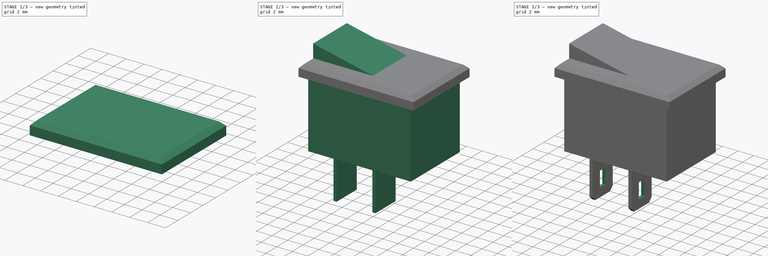
[diagram: build sequence overview — one tinted view per stage of 3, left to right]
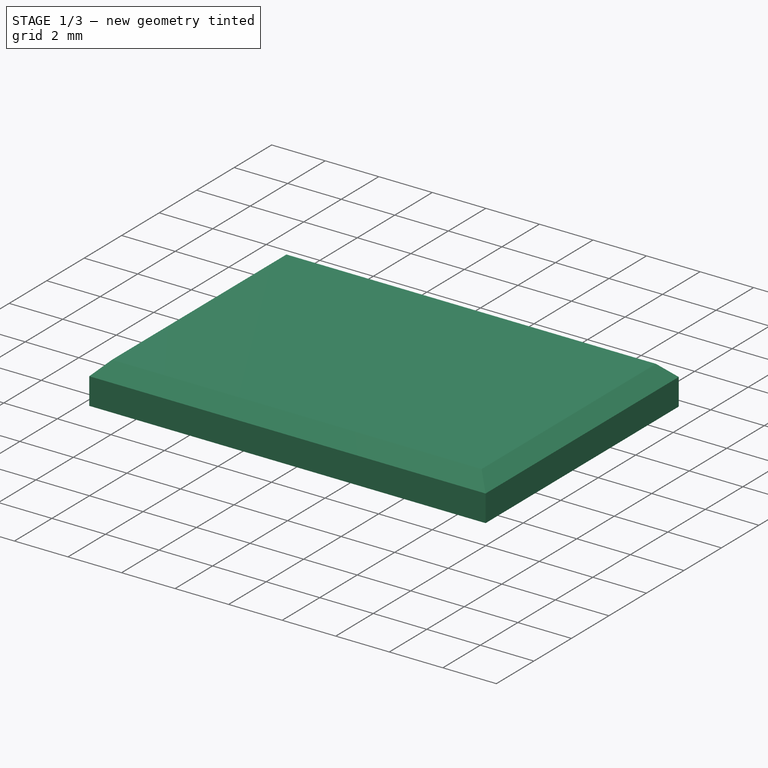
[diagram: stage 1 of 3 — iso view after this stage's code; geometry added in this stage tinted green]
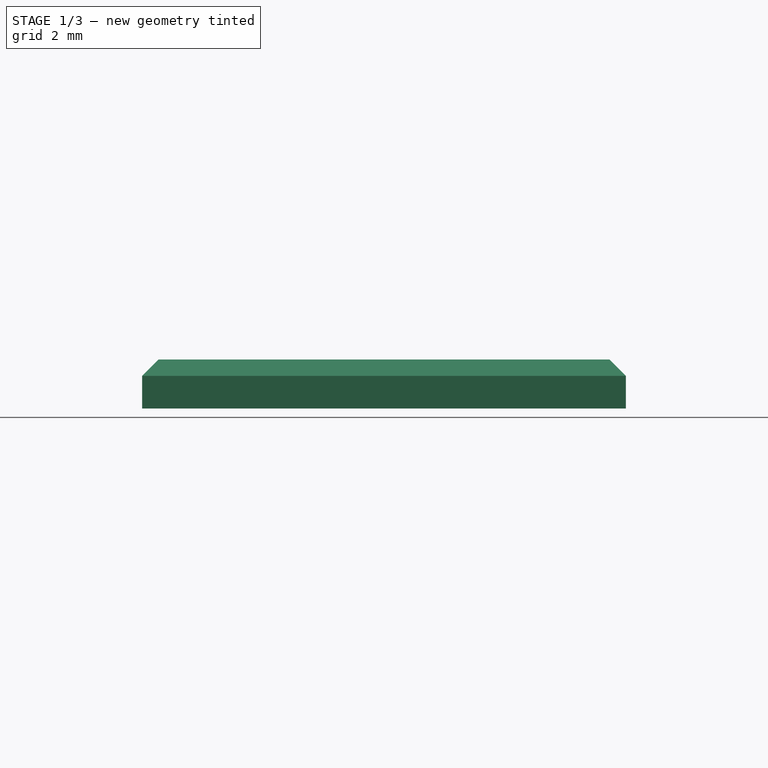
[diagram: stage 1 of 3 — front view after this stage's code; geometry added in this stage tinted green]
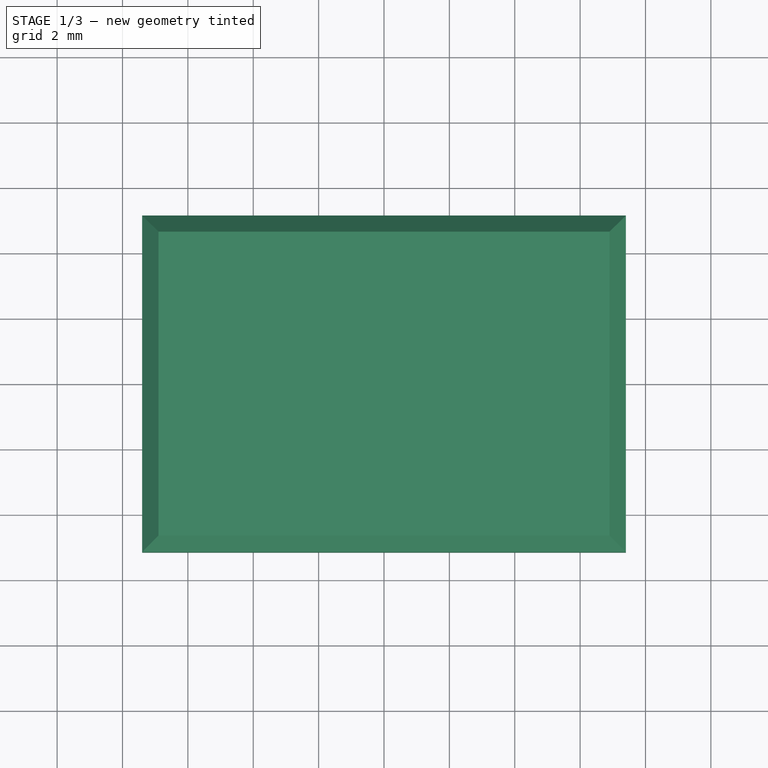
[diagram: stage 1 of 3 — top view after this stage's code; geometry added in this stage tinted green]
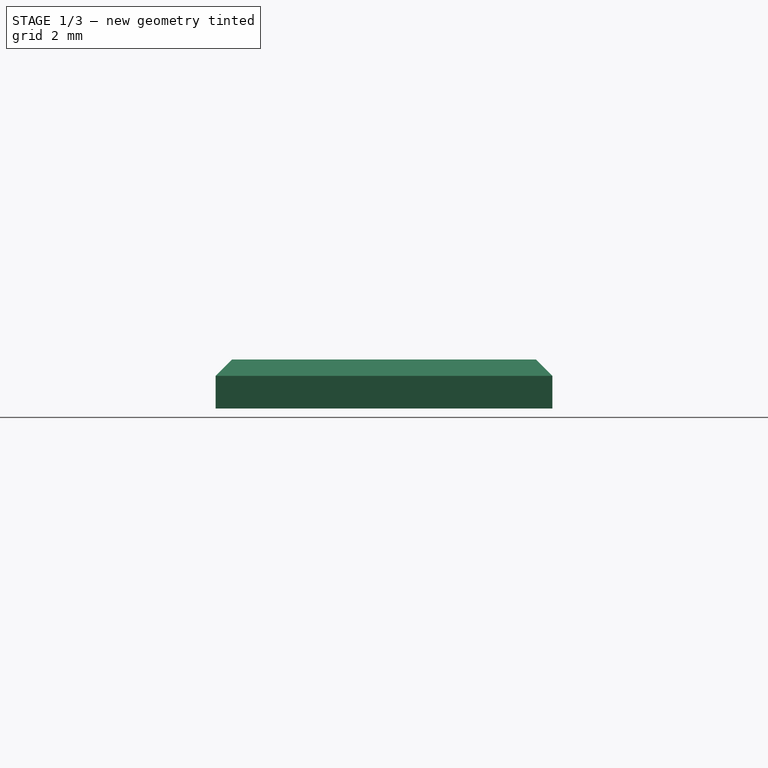
[diagram: stage 1 of 3 — right view after this stage's code; geometry added in this stage tinted green]
FCSTD DOCUMENT  (FreeCAD 0.19R24276 (Git))
Label: KCD11_Rocker_Switch
License: All rights reserved
LicenseURL: http://en.wikipedia.org/wiki/All_rights_reserved
objects: Sketcher::SketchObject×6, PartDesign::Pad×3, PartDesign::Plane×3, PartDesign::Chamfer×2, PartDesign::AdditiveLoft×1, PartDesign::Pocket×1, PartDesign::Body×1
note: 24 computed .brp shape members not serialized (recipe doc carries the construction recipe); baked Part::Feature solids carry a one-line shape summary decoded from their .brp

FEATURE [Sketcher::SketchObject] Sketch
  FullyConstrained = true
  MapMode = 5
  Support = -> [XY_Plane]
  sketch-geometry (4):
    g0: LineSegment StartX=-7.4 StartY=5.15 StartZ=0 EndX=7.4 EndY=5.15 EndZ=0
    g1: LineSegment StartX=7.4 StartY=5.15 StartZ=0 EndX=7.4 EndY=-5.15 EndZ=0
    g2: LineSegment StartX=7.4 StartY=-5.15 StartZ=0 EndX=-7.4 EndY=-5.15 EndZ=0
    g3: LineSegment StartX=-7.4 StartY=-5.15 StartZ=0 EndX=-7.4 EndY=5.15 EndZ=0
  constraints (11):
    c: Coincident(g0,g1)
    c: Coincident(g1,g2)
    c: Coincident(g2,g3)
    c: Coincident(g3,g0)
    c: Horizontal(g0)
    c: Horizontal(g2)
    c: Vertical(g1)
    c: Vertical(g3)
    c: DistanceX(g0,g0) = 14.8
    c: DistanceY(g3,g3) = 10.3
    c: Symmetric(g0,g1,g-1)
FEATURE [PartDesign::Pad] Pad
  Direction = (1,1,1)
  Length = 1.5
  Length2 = 100
  Profile = -> Sketch
  Refine = true
  Type = 0
FEATURE [PartDesign::Chamfer] Chamfer
  Angle = 45
  Base = -> Pad [Face6]
  BaseFeature = -> Pad
  ChamferType = 0
  FlipDirection = false
  Refine = true
  Size = 0.5
  Size2 = 1
  SupportTransform = false
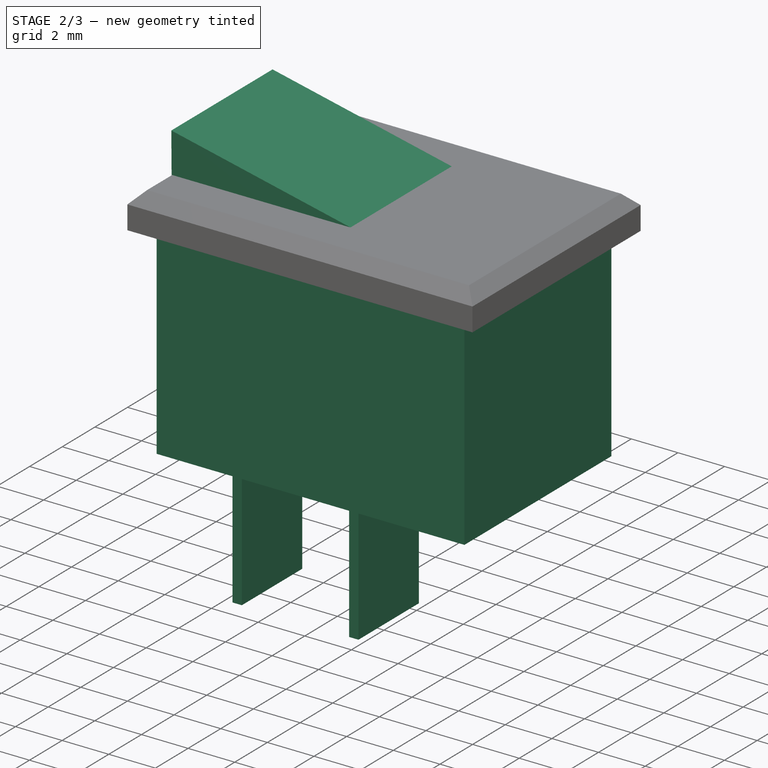
[diagram: stage 2 of 3 — iso view after this stage's code; geometry added in this stage tinted green]
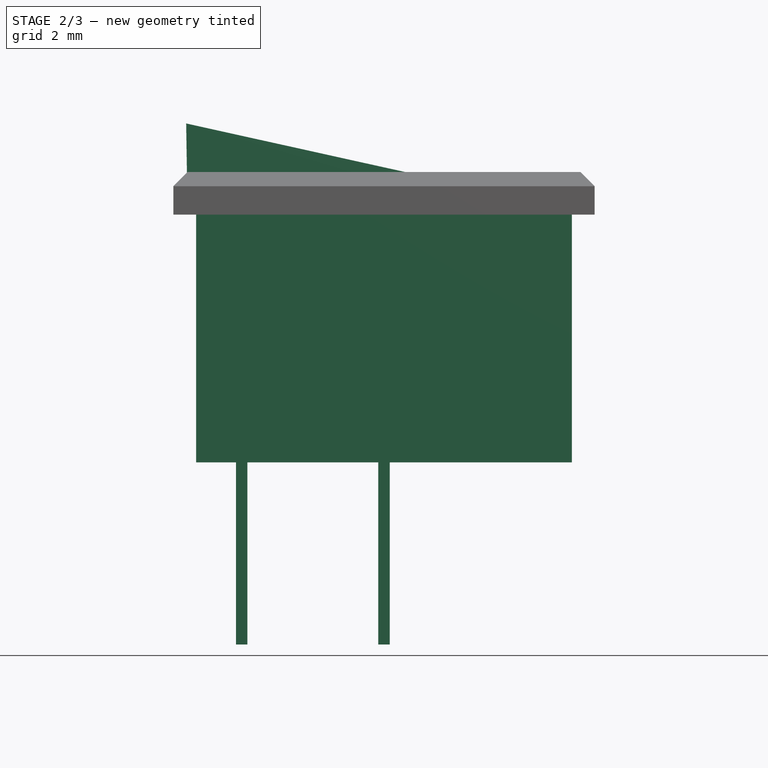
[diagram: stage 2 of 3 — front view after this stage's code; geometry added in this stage tinted green]
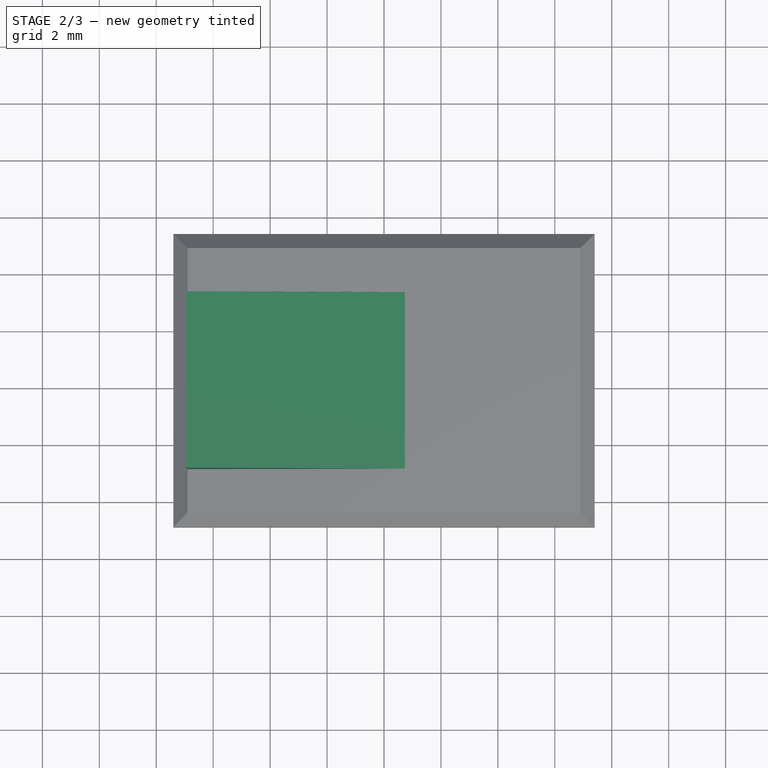
[diagram: stage 2 of 3 — top view after this stage's code; geometry added in this stage tinted green]
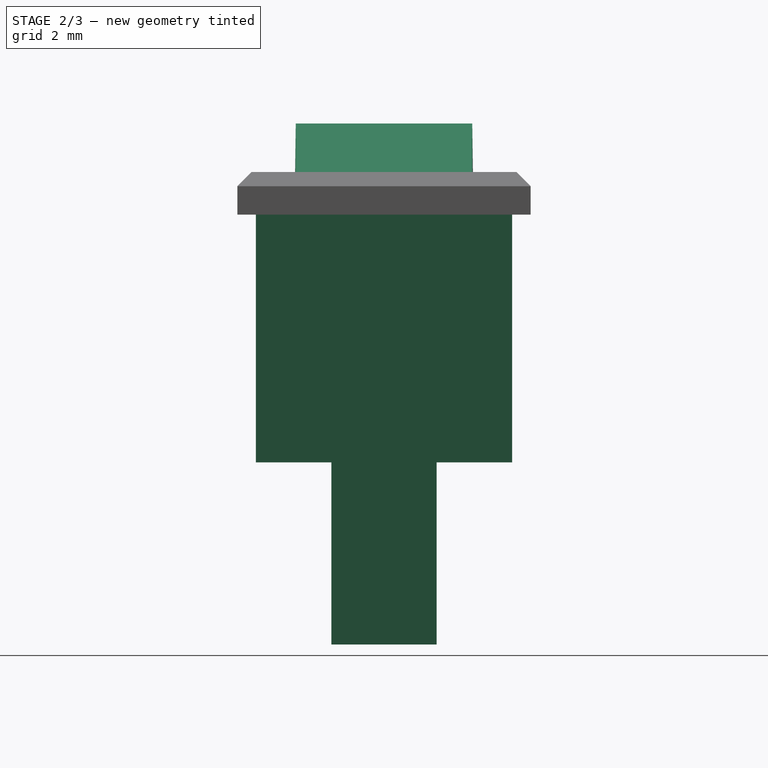
[diagram: stage 2 of 3 — right view after this stage's code; geometry added in this stage tinted green]
FEATURE [Sketcher::SketchObject] Sketch001
  FullyConstrained = true
  MapMode = 5
  Support = -> [XY_Plane]
  sketch-geometry (4):
    g0: LineSegment StartX=-6.9 StartY=3.14 StartZ=0 EndX=6.9 EndY=3.14 EndZ=0
    g1: LineSegment StartX=6.9 StartY=3.14 StartZ=0 EndX=6.9 EndY=-3.14 EndZ=0
    g2: LineSegment StartX=6.9 StartY=-3.14 StartZ=0 EndX=-6.9 EndY=-3.14 EndZ=0
    g3: LineSegment StartX=-6.9 StartY=-3.14 StartZ=0 EndX=-6.9 EndY=3.14 EndZ=0
  constraints (11):
    c: Coincident(g0,g1)
    c: Coincident(g1,g2)
    c: Coincident(g2,g3)
    c: Coincident(g3,g0)
    c: Horizontal(g0)
    c: Horizontal(g2)
    c: Vertical(g1)
    c: Vertical(g3)
    c: DistanceY(g3,g3) = 6.28
    c: DistanceX(g0,g0) = 13.8
    c: Symmetric(g0,g1,g-1)
FEATURE [PartDesign::Plane] DatumPlane
  Length = 70.558
  MapMode = 2
  Placement = pos=(7.5,0,0) rot=(0,1,0;0.218166rad)
  ResizeMode = 0
  Width = 60.9212
FEATURE [Sketcher::SketchObject] Sketch002
  AttachmentOffset = pos=(-1,0,0) rot=(0,0,1;0rad)
  FullyConstrained = true
  MapMode = 5
  Placement = pos=(6.5237,0,0.21644) rot=(0,1,0;0.218166rad)
  Support = -> [DatumPlane]
  sketch-geometry (5):
    g0: LineSegment StartX=0 StartY=3.1 StartZ=0 EndX=-13.8 EndY=3.1 EndZ=0
    g1: LineSegment StartX=-13.8 StartY=3.1 StartZ=0 EndX=-13.8 EndY=-3.1 EndZ=0
    g2: LineSegment StartX=-13.8 StartY=-3.1 StartZ=0 EndX=0 EndY=-3.1 EndZ=0
    g3: LineSegment StartX=0 StartY=-3.1 StartZ=0 EndX=0 EndY=3.1 EndZ=0
    g4: GeomPoint X=-6.9 Y=0 Z=0
  constraints (13):
    c: Coincident(g0,g1)
    c: Coincident(g1,g2)
    c: Coincident(g2,g3)
    c: Coincident(g3,g0)
    c: Horizontal(g0)
    c: Horizontal(g2)
    c: Vertical(g1)
    c: Vertical(g3)
    c: PointOnObject(g0,g-2)
    c: DistanceY(g1,g1) = 6.2
    c: Symmetric(g0,g2,g4)
    c: Horizontal(g-1,g4)
    c: DistanceX(g0,g0) = 13.8
FEATURE [PartDesign::AdditiveLoft] AdditiveLoft
  BaseFeature = -> Chamfer
  Closed = false
  Profile = -> Sketch002
  Refine = true
  Ruled = false
  Sections = -> [Sketch001]
FEATURE [Sketcher::SketchObject] Sketch003
  FullyConstrained = true
  MapMode = 5
  Support = -> [XY_Plane]
  sketch-geometry (4):
    g0: LineSegment StartX=-6.6 StartY=4.5 StartZ=0 EndX=6.6 EndY=4.5 EndZ=0
    g1: LineSegment StartX=6.6 StartY=4.5 StartZ=0 EndX=6.6 EndY=-4.5 EndZ=0
    g2: LineSegment StartX=6.6 StartY=-4.5 StartZ=0 EndX=-6.6 EndY=-4.5 EndZ=0
    g3: LineSegment StartX=-6.6 StartY=-4.5 StartZ=0 EndX=-6.6 EndY=4.5 EndZ=0
  constraints (11):
    c: Coincident(g0,g1)
    c: Coincident(g1,g2)
    c: Coincident(g2,g3)
    c: Coincident(g3,g0)
    c: Horizontal(g0)
    c: Horizontal(g2)
    c: Vertical(g1)
    c: Vertical(g3)
    c: DistanceX(g2,g2) = 13.2
    c: DistanceY(g3,g3) = 9
    c: Symmetric(g0,g1,g-1)
FEATURE [PartDesign::Pad] Pad001
  BaseFeature = -> AdditiveLoft
  Direction = (1,1,1)
  Length = 8.7
  Length2 = 100
  Profile = -> Sketch003
  Refine = true
  Reversed = true
  Type = 0
FEATURE [PartDesign::Plane] DatumPlane001
  Length = 60
  MapMode = 5
  Placement = pos=(0,0,-8.7) rot=(1,0,0;3.14159rad)
  ResizeMode = 0
  Width = 60
FEATURE [Sketcher::SketchObject] Sketch004
  FullyConstrained = true
  MapMode = 5
  Placement = pos=(0,0,-8.7) rot=(1,0,0;3.14159rad)
  Support = -> [DatumPlane001]
  sketch-geometry (10):
    g0: LineSegment StartX=-5.2 StartY=1.85 StartZ=0 EndX=-4.8 EndY=1.85 EndZ=0
    g1: LineSegment StartX=-4.8 StartY=1.85 StartZ=0 EndX=-4.8 EndY=-1.85 EndZ=0
    g2: LineSegment StartX=-4.8 StartY=-1.85 StartZ=0 EndX=-5.2 EndY=-1.85 EndZ=0
    g3: LineSegment StartX=-5.2 StartY=-1.85 StartZ=0 EndX=-5.2 EndY=1.85 EndZ=0
    g4: LineSegment StartX=-0.2 StartY=1.85 StartZ=0 EndX=0.2 EndY=1.85 EndZ=0
    g5: LineSegment StartX=0.2 StartY=1.85 StartZ=0 EndX=0.2 EndY=-1.85 EndZ=0
    g6: LineSegment StartX=0.2 StartY=-1.85 StartZ=0 EndX=-0.2 EndY=-1.85 EndZ=0
    g7: LineSegment StartX=-0.2 StartY=-1.85 StartZ=0 EndX=-0.2 EndY=1.85 EndZ=0
    g8: GeomPoint X=0 Y=0 Z=0
    g9: GeomPoint X=-5 Y=0 Z=0
  constraints (25):
    c: Coincident(g0,g1)
    c: Coincident(g1,g2)
    c: Coincident(g2,g3)
    c: Coincident(g3,g0)
    c: Horizontal(g0)
    c: Horizontal(g2)
    c: Vertical(g1)
    c: Vertical(g3)
    c: Coincident(g4,g5)
    c: Coincident(g5,g6)
    c: Coincident(g6,g7)
    c: Coincident(g7,g4)
    c: Horizontal(g4)
    c: Horizontal(g6)
    c: Vertical(g5)
    c: Vertical(g7)
    c: Symmetric(g4,g5,g8)
    c: Coincident(g-1,g8)
    c: DistanceX(g6,g6) = 0.4
    c: DistanceY(g5,g5) = 3.7
    c: Equal(g7,g1)
    c: Equal(g4,g0)
    c: Symmetric(g0,g1,g9)
    c: Horizontal(g9,g-1)
    c: DistanceX(g9,g-1) = 5
FEATURE [PartDesign::Pad] Pad002
  BaseFeature = -> Pad001
  Direction = (1,1,1)
  Length = 6.4
  Length2 = 100
  Profile = -> Sketch004
  Refine = true
  Type = 0
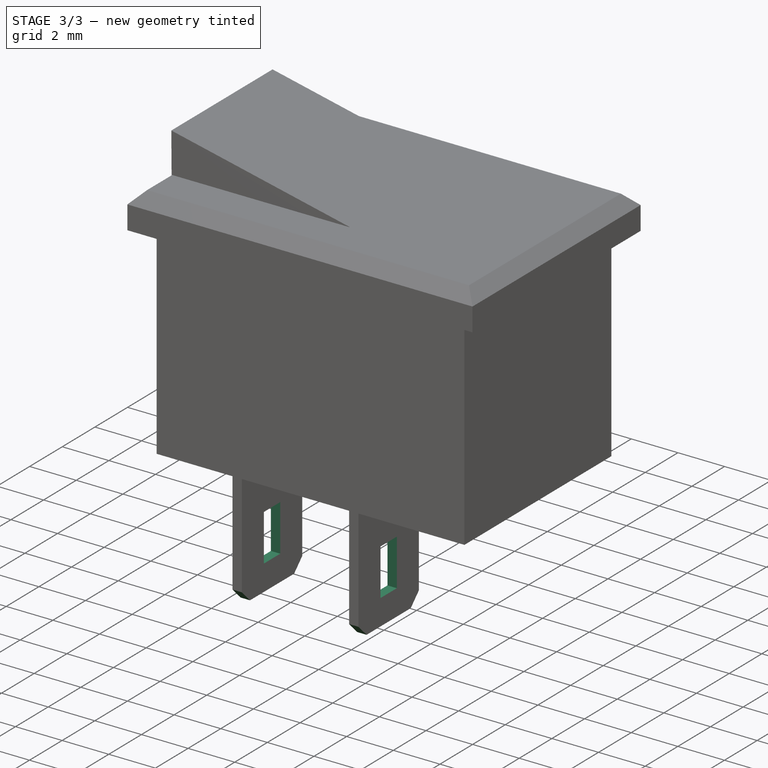
[diagram: stage 3 of 3 — iso view after this stage's code; geometry added in this stage tinted green]
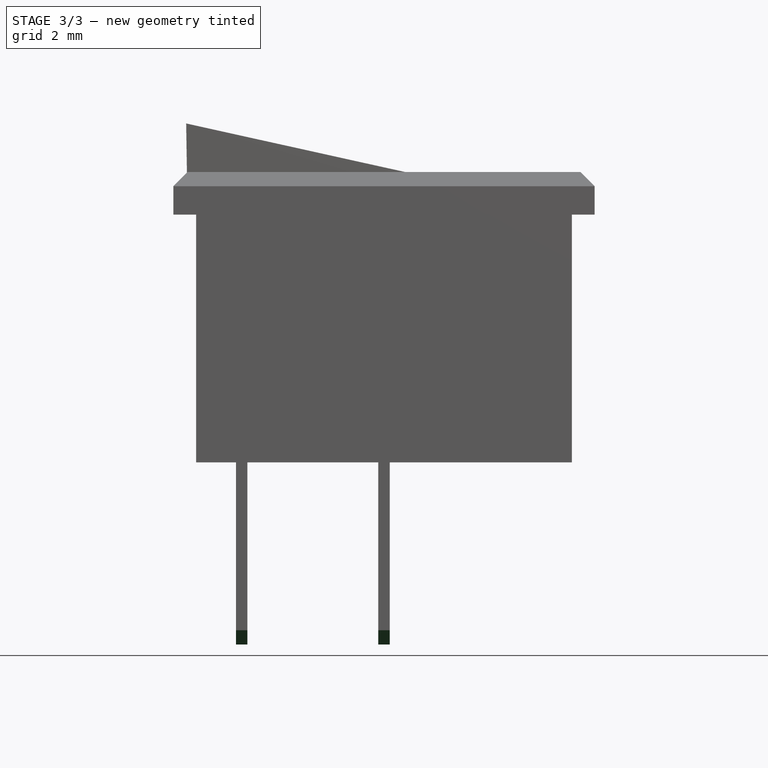
[diagram: stage 3 of 3 — front view after this stage's code; geometry added in this stage tinted green]
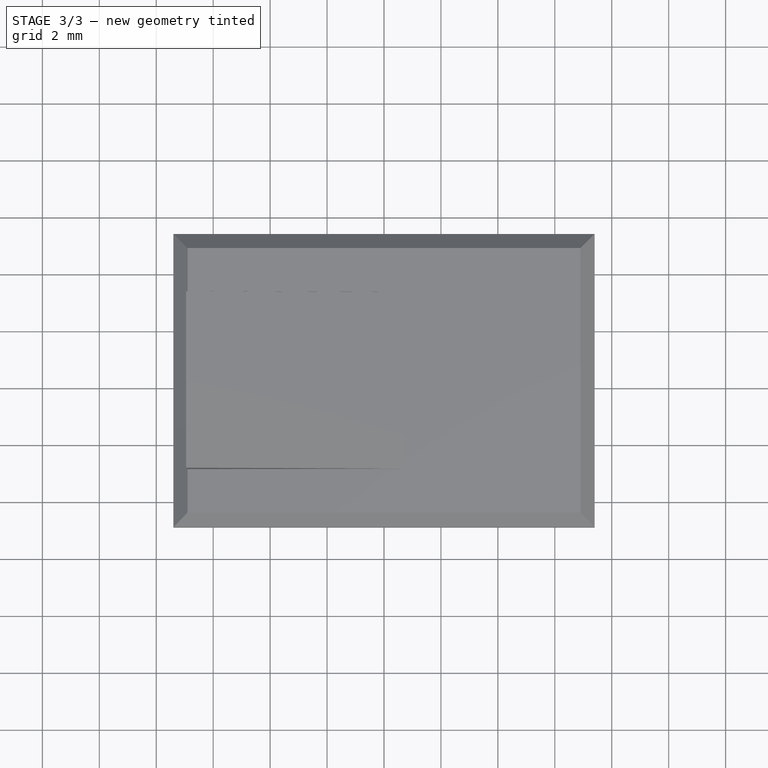
[diagram: stage 3 of 3 — top view after this stage's code; geometry added in this stage tinted green]
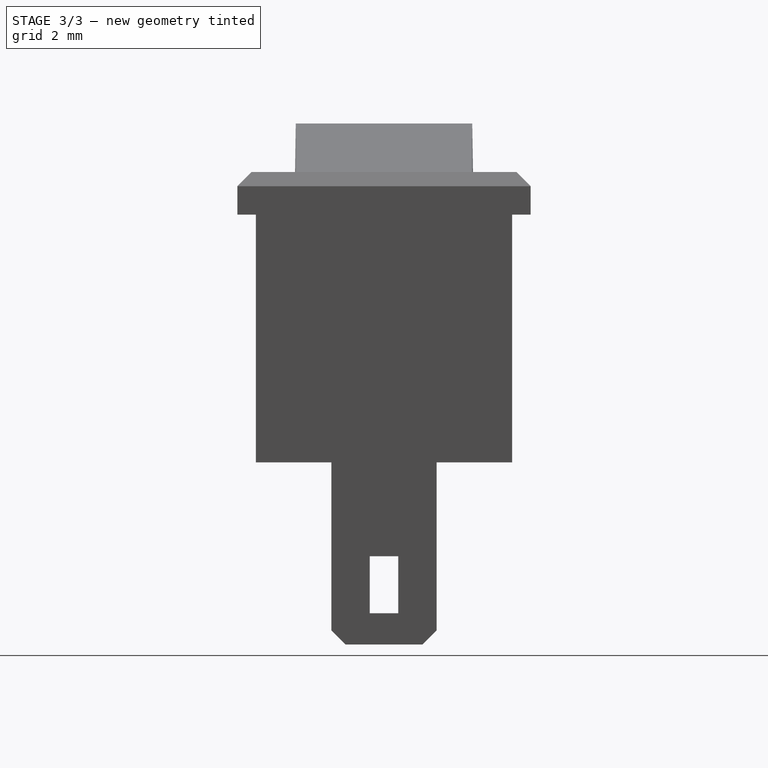
[diagram: stage 3 of 3 — right view after this stage's code; geometry added in this stage tinted green]
FEATURE [PartDesign::Plane] DatumPlane002
  Length = 60
  MapMode = 5
  Placement = pos=(-5.2,0,0) rot=(0.57735,-0.57735,-0.57735;2.0944rad)
  ResizeMode = 0
  Width = 60
FEATURE [Sketcher::SketchObject] Sketch005
  FullyConstrained = true
  MapMode = 5
  Placement = pos=(-5.2,0,0) rot=(0.57735,-0.57735,-0.57735;2.0944rad)
  Support = -> [DatumPlane002]
  sketch-geometry (5):
    g0: LineSegment StartX=-0.5 StartY=-12 StartZ=0 EndX=0.5 EndY=-12 EndZ=0
    g1: LineSegment StartX=0.5 StartY=-12 StartZ=0 EndX=0.5 EndY=-14 EndZ=0
    g2: LineSegment StartX=0.5 StartY=-14 StartZ=0 EndX=-0.5 EndY=-14 EndZ=0
    g3: LineSegment StartX=-0.5 StartY=-14 StartZ=0 EndX=-0.5 EndY=-12 EndZ=0
    g4: GeomPoint X=0 Y=-13 Z=0
  constraints (13):
    c: Coincident(g0,g1)
    c: Coincident(g1,g2)
    c: Coincident(g2,g3)
    c: Coincident(g3,g0)
    c: Horizontal(g0)
    c: Horizontal(g2)
    c: Vertical(g1)
    c: Vertical(g3)
    c: PointOnObject(g4,g-2)
    c: Symmetric(g0,g1,g4)
    c: DistanceX(g0,g0) = 1
    c: DistanceY(g1,g1) = 2
    c: DistanceY(g0,g-1) = 12
FEATURE [PartDesign::Pocket] Pocket
  BaseFeature = -> Pad002
  Length = 5
  Length2 = 100
  Profile = -> Sketch005
  Refine = true
  Type = 1
FEATURE [PartDesign::Chamfer] Chamfer001
  Angle = 45
  Base = -> Pocket [Edge84,Edge68,Edge61,Edge77]
  BaseFeature = -> Pocket
  ChamferType = 0
  FlipDirection = false
  Refine = true
  Size = 0.5
  Size2 = 1
  SupportTransform = false
FEATURE [PartDesign::Body] Body  label="KC11_Rocker_Switch"
  Group = -> [Sketch,Pad,Chamfer,Sketch001,DatumPlane,Sketch002,AdditiveLoft,Sketch003,Pad001,DatumPlane001,Sketch004,Pad002,DatumPlane002,Sketch005,Pocket,Chamfer001]
  Origin = -> Origin
  Tip = -> Chamfer001
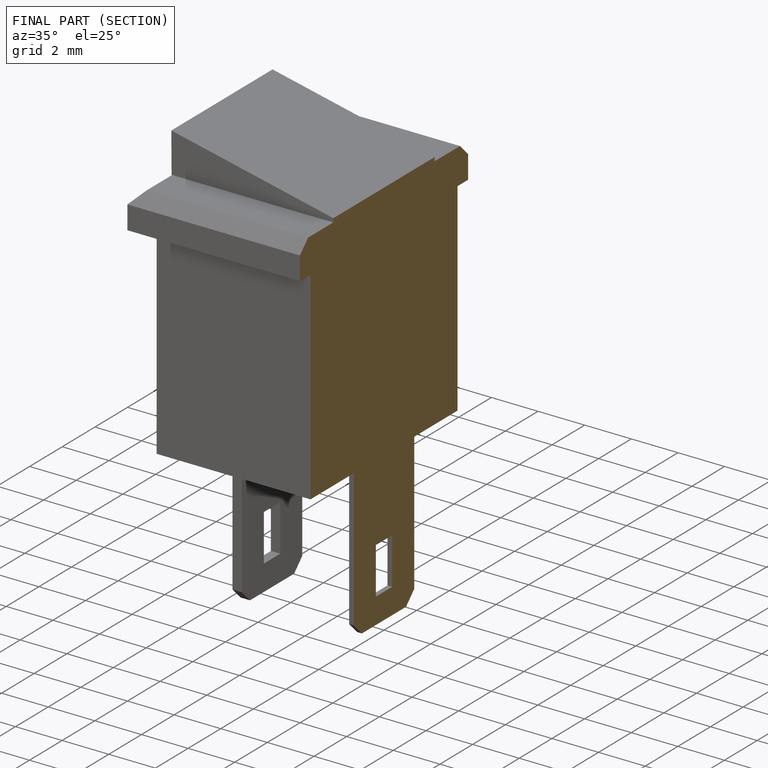
[diagram: finished part — half-section view (interior)]
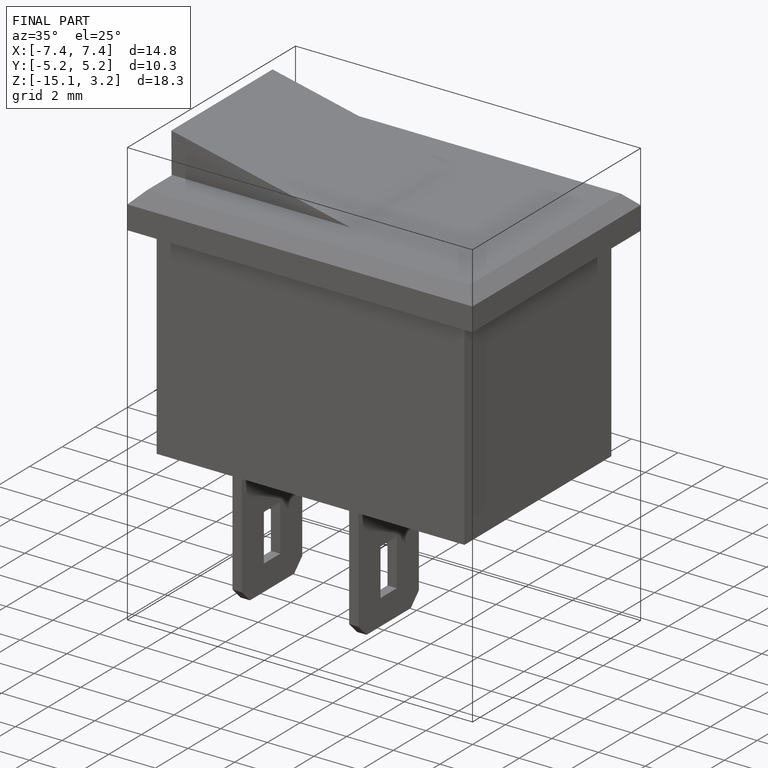
[diagram: finished part — iso view with bounding-box wireframe]
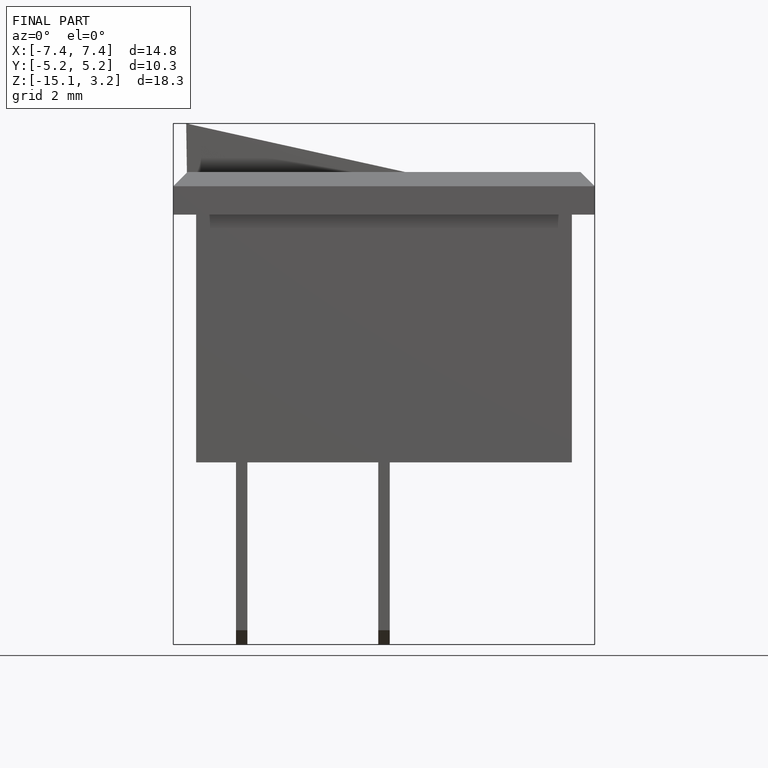
[diagram: finished part — front view with bounding-box wireframe]
